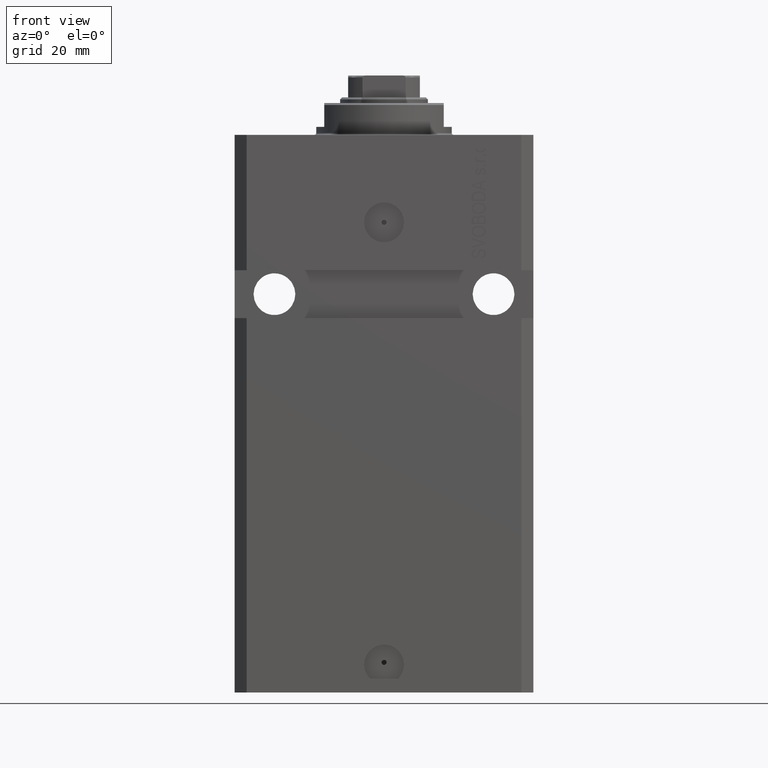
[diagram: clean part render]
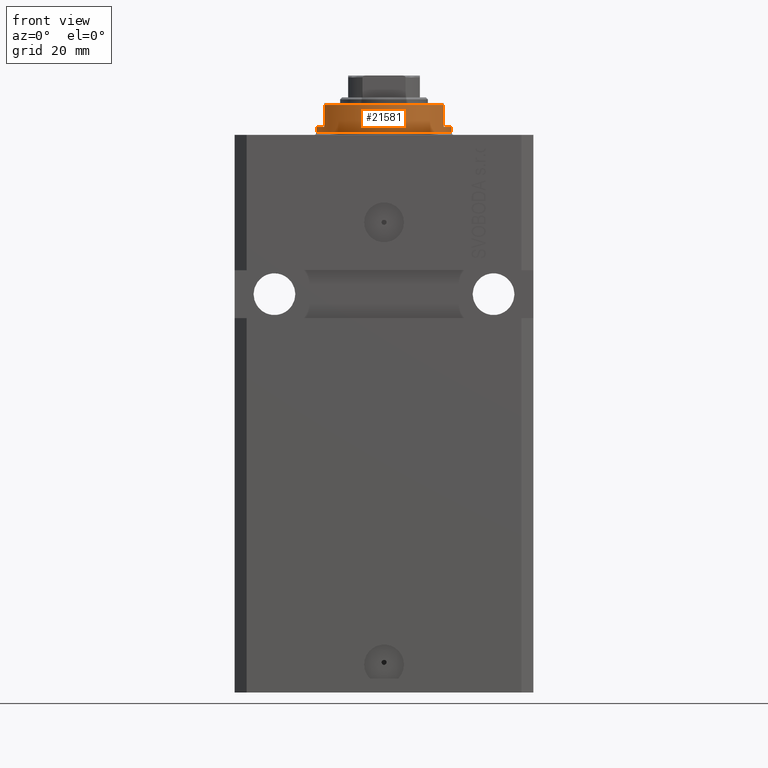
[diagram: same view with one face highlighted and labeled with its STEP entity id]
A machine part, front view. The second image highlights one B-rep face of the part: STEP entity #21581.
In plain terms, the highlighted cylindrical surface (partial cylindrical patch) has radius 17 mm, axis along (0, 0, -1).
Its self-contained STEP definition (entity closure, byte-faithful):
#1433 = CARTESIAN_POINT ( 'NONE',  ( 0.000000000000000000, 0.000000000000000000, -0.5000000000000004441 ) ) ;
#1630 = VERTEX_POINT ( 'NONE', #34186 ) ;
#2756 = CARTESIAN_POINT ( 'NONE',  ( 0.000000000000000000, 0.000000000000000000, -2.000000000000000000 ) ) ;
#2919 = EDGE_CURVE ( 'NONE', #47078, #32034, #41047, .T. ) ;
#3218 = VECTOR ( 'NONE', #22879, 1000.000000000000000 ) ;
#3424 = DIRECTION ( 'NONE',  ( -0.000000000000000000, -0.000000000000000000, 1.000000000000000000 ) ) ;
#3452 = AXIS2_PLACEMENT_3D ( 'NONE', #27366, #45084, #34286 ) ;
#3598 = CARTESIAN_POINT ( 'NONE',  ( 14.99999999999999645, -8.000000000000003553, -2.000000000000000000 ) ) ;
#3957 = CARTESIAN_POINT ( 'NONE',  ( 17.00000000000000000, 0.000000000000000000, -2.000000000000000000 ) ) ;
#4242 = CARTESIAN_POINT ( 'NONE',  ( -15.00000000000000000, -8.000000000000001776, -8.000000000000000000 ) ) ;
#5153 = DIRECTION ( 'NONE',  ( 0.000000000000000000, 0.000000000000000000, -1.000000000000000000 ) ) ;
#5391 = DIRECTION ( 'NONE',  ( -1.000000000000000000, 0.000000000000000000, 0.000000000000000000 ) ) ;
#5611 = EDGE_LOOP ( 'NONE', ( #17460, #6787, #14573, #33774, #26943, #9436, #43938, #31678 ) ) ;
#6482 = VECTOR ( 'NONE', #3424, 1000.000000000000000 ) ;
#6787 = ORIENTED_EDGE ( 'NONE', *, *, #35427, .F. ) ;
#8178 = LINE ( 'NONE', #22805, #37370 ) ;
#8806 = AXIS2_PLACEMENT_3D ( 'NONE', #1433, #15346, #11991 ) ;
#9436 = ORIENTED_EDGE ( 'NONE', *, *, #34152, .F. ) ;
#10962 = DIRECTION ( 'NONE',  ( 0.000000000000000000, 0.000000000000000000, -1.000000000000000000 ) ) ;
#11991 = DIRECTION ( 'NONE',  ( 1.000000000000000000, 0.000000000000000000, 0.000000000000000000 ) ) ;
#12612 = CARTESIAN_POINT ( 'NONE',  ( 0.000000000000000000, 0.000000000000000000, -2.000000000000000000 ) ) ;
#14573 = ORIENTED_EDGE ( 'NONE', *, *, #36197, .T. ) ;
#14575 = LINE ( 'NONE', #4242, #15310 ) ;
#15310 = VECTOR ( 'NONE', #10962, 1000.000000000000000 ) ;
#15346 = DIRECTION ( 'NONE',  ( -0.000000000000000000, -0.000000000000000000, -1.000000000000000000 ) ) ;
#17460 = ORIENTED_EDGE ( 'NONE', *, *, #33005, .F. ) ;
#18349 = AXIS2_PLACEMENT_3D ( 'NONE', #31301, #23666, #38237 ) ;
#18742 = LINE ( 'NONE', #36214, #6482 ) ;
#19104 = AXIS2_PLACEMENT_3D ( 'NONE', #12612, #5153, #5391 ) ;
#19777 = EDGE_CURVE ( 'NONE', #26557, #35959, #18742, .T. ) ;
#20183 = FACE_OUTER_BOUND ( 'NONE', #5611, .T. ) ;
#20991 = EDGE_CURVE ( 'NONE', #35959, #36856, #29481, .T. ) ;
#21581 = ADVANCED_FACE ( 'NONE', ( #20183 ), #30464, .T. ) ;
#22042 = CARTESIAN_POINT ( 'NONE',  ( 17.00000000000000000, 0.000000000000000000, -0.5000000000000004441 ) ) ;
#22113 = VERTEX_POINT ( 'NONE', #44964 ) ;
#22805 = CARTESIAN_POINT ( 'NONE',  ( -17.00000000000000000, 2.081899558550500280E-15, -8.000000000000000000 ) ) ;
#22879 = DIRECTION ( 'NONE',  ( 0.000000000000000000, 0.000000000000000000, -1.000000000000000000 ) ) ;
#23666 = DIRECTION ( 'NONE',  ( 0.000000000000000000, 0.000000000000000000, 1.000000000000000000 ) ) ;
#25326 = CARTESIAN_POINT ( 'NONE',  ( -17.00000000000000000, 2.081899558550500280E-15, -0.5000000000000004441 ) ) ;
#25673 = CARTESIAN_POINT ( 'NONE',  ( 15.00000000000000000, -8.000000000000001776, -7.500000000000013323 ) ) ;
#26557 = VERTEX_POINT ( 'NONE', #3957 ) ;
#26943 = ORIENTED_EDGE ( 'NONE', *, *, #2919, .F. ) ;
#27366 = CARTESIAN_POINT ( 'NONE',  ( 0.000000000000000000, 0.000000000000000000, -8.000000000000000000 ) ) ;
#28381 = DIRECTION ( 'NONE',  ( -1.000000000000000000, 0.000000000000000000, 0.000000000000000000 ) ) ;
#29481 = CIRCLE ( 'NONE', #8806, 17.00000000000000000 ) ;
#29768 = AXIS2_PLACEMENT_3D ( 'NONE', #2756, #31719, #28381 ) ;
#30464 = CYLINDRICAL_SURFACE ( 'NONE', #3452, 17.00000000000000000 ) ;
#31301 = CARTESIAN_POINT ( 'NONE',  ( 0.000000000000000000, 0.000000000000000000, -7.500000000000013323 ) ) ;
#31678 = ORIENTED_EDGE ( 'NONE', *, *, #20991, .T. ) ;
#31719 = DIRECTION ( 'NONE',  ( 0.000000000000000000, 0.000000000000000000, -1.000000000000000000 ) ) ;
#32034 = VERTEX_POINT ( 'NONE', #25673 ) ;
#32662 = VERTEX_POINT ( 'NONE', #42799 ) ;
#33005 = EDGE_CURVE ( 'NONE', #22113, #36856, #8178, .T. ) ;
#33774 = ORIENTED_EDGE ( 'NONE', *, *, #39395, .T. ) ;
#34093 = CARTESIAN_POINT ( 'NONE',  ( 15.00000000000000000, -8.000000000000001776, -8.000000000000000000 ) ) ;
#34152 = EDGE_CURVE ( 'NONE', #26557, #47078, #45035, .T. ) ;
#34186 = CARTESIAN_POINT ( 'NONE',  ( -14.99999999999999645, -8.000000000000003553, -2.000000000000000000 ) ) ;
#34286 = DIRECTION ( 'NONE',  ( 1.000000000000000000, 0.000000000000000000, 0.000000000000000000 ) ) ;
#34489 = DIRECTION ( 'NONE',  ( -0.000000000000000000, -0.000000000000000000, 1.000000000000000000 ) ) ;
#35427 = EDGE_CURVE ( 'NONE', #1630, #22113, #39726, .T. ) ;
#35959 = VERTEX_POINT ( 'NONE', #22042 ) ;
#36197 = EDGE_CURVE ( 'NONE', #1630, #32662, #14575, .T. ) ;
#36214 = CARTESIAN_POINT ( 'NONE',  ( 17.00000000000000000, 0.000000000000000000, -8.000000000000000000 ) ) ;
#36856 = VERTEX_POINT ( 'NONE', #25326 ) ;
#37370 = VECTOR ( 'NONE', #34489, 1000.000000000000000 ) ;
#38237 = DIRECTION ( 'NONE',  ( -1.000000000000000000, 0.000000000000000000, 0.000000000000000000 ) ) ;
#39395 = EDGE_CURVE ( 'NONE', #32662, #32034, #39766, .T. ) ;
#39726 = CIRCLE ( 'NONE', #19104, 17.00000000000000000 ) ;
#39766 = CIRCLE ( 'NONE', #18349, 17.00000000000000000 ) ;
#41047 = LINE ( 'NONE', #34093, #3218 ) ;
#42799 = CARTESIAN_POINT ( 'NONE',  ( -15.00000000000000000, -8.000000000000001776, -7.500000000000014211 ) ) ;
#43938 = ORIENTED_EDGE ( 'NONE', *, *, #19777, .T. ) ;
#44964 = CARTESIAN_POINT ( 'NONE',  ( -17.00000000000000000, 2.081899558550500280E-15, -2.000000000000000000 ) ) ;
#45035 = CIRCLE ( 'NONE', #29768, 17.00000000000000000 ) ;
#45084 = DIRECTION ( 'NONE',  ( -0.000000000000000000, -0.000000000000000000, 1.000000000000000000 ) ) ;
#47078 = VERTEX_POINT ( 'NONE', #3598 ) ;